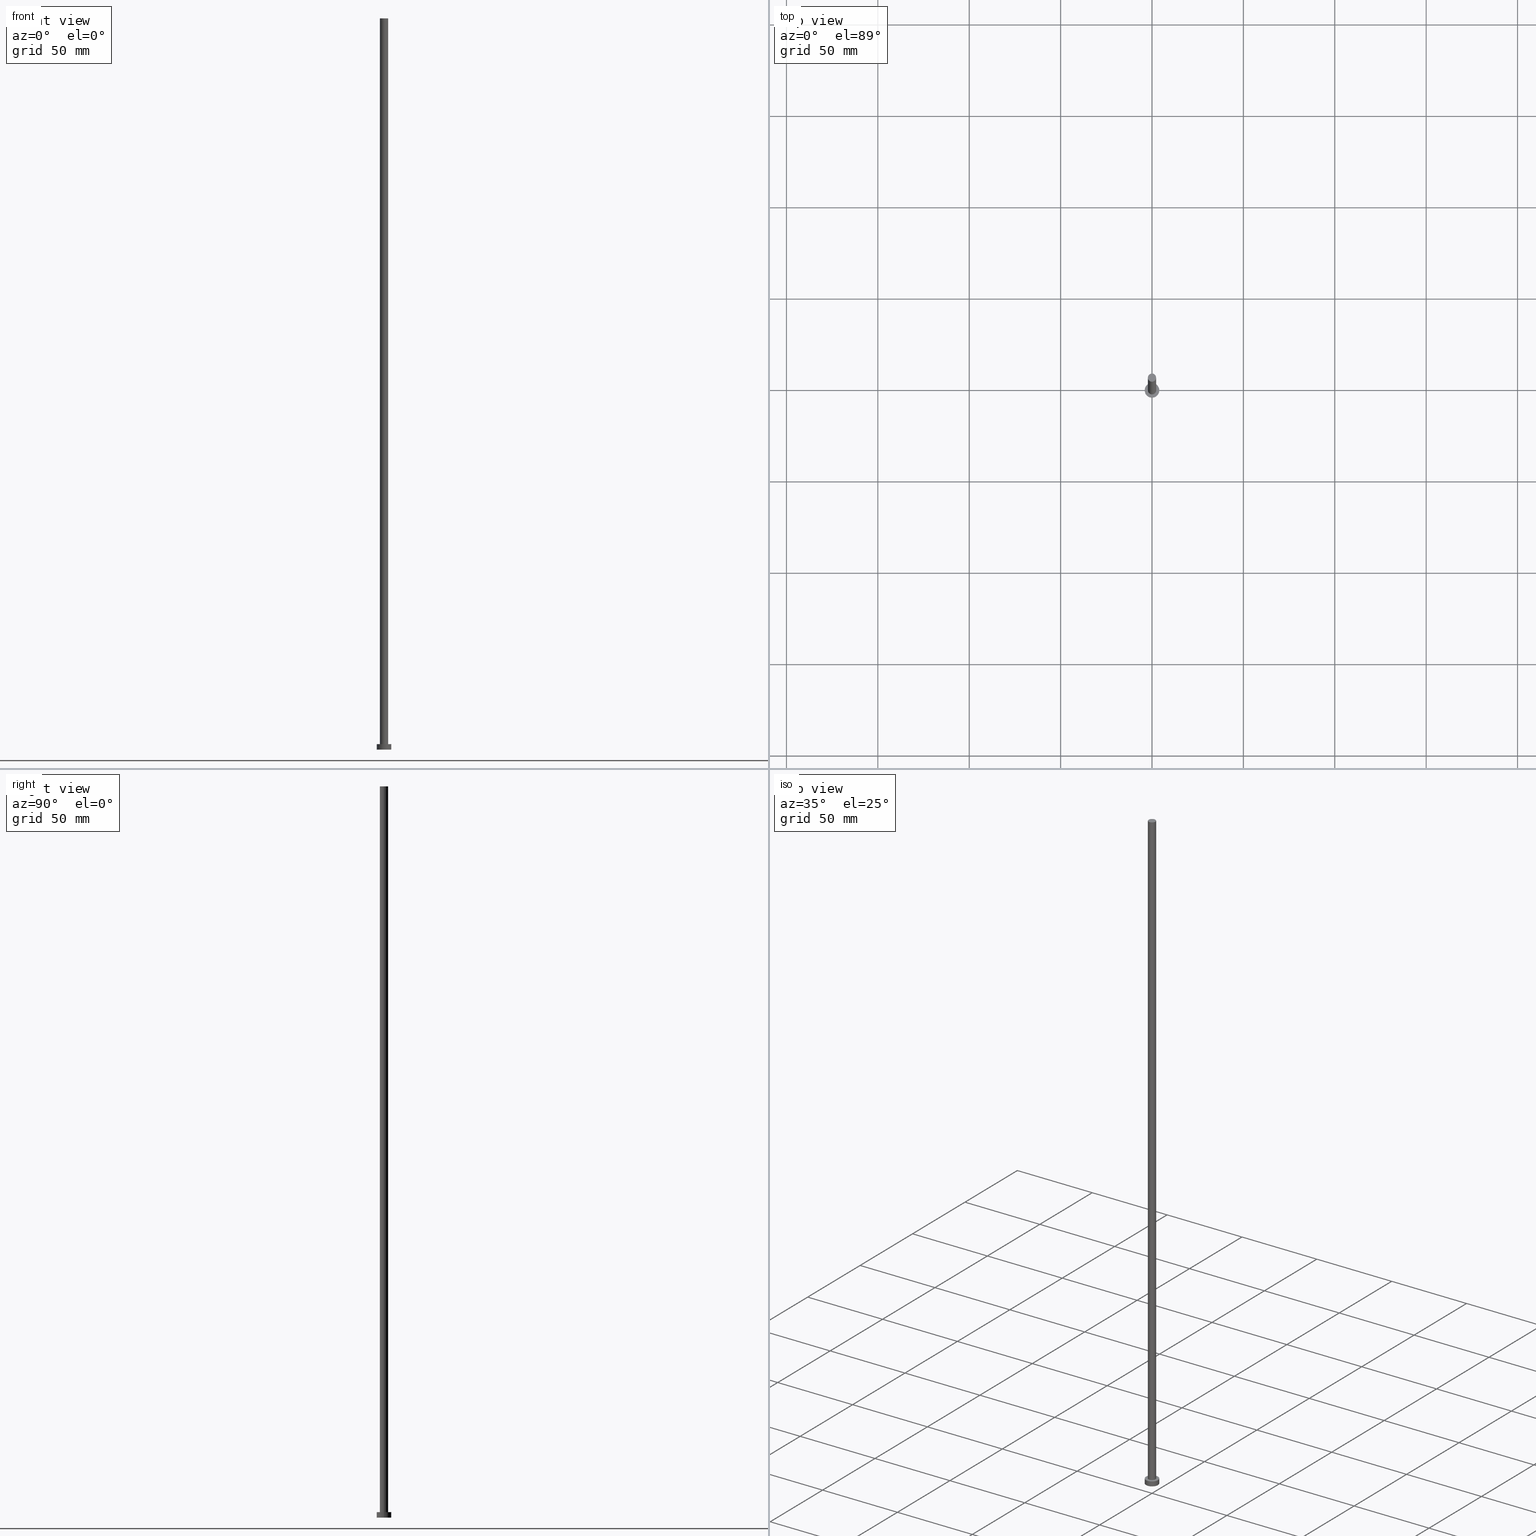
[diagram: canonical four-view strip — front | top / right | iso, engineering-drawing reading convention]
A machine part, canonical four-view strip (front | top / right | iso — engineering-drawing reading convention). The complete STEP part file that produces these views, byte-faithful:
ISO-10303-21;
HEADER;
FILE_DESCRIPTION (( 'STEP AP203' ),
    '1' );
FILE_NAME ('6efa.STEP',
    '2023-02-13T13:27:24',
    ( '' ),
    ( '' ),
    'SwSTEP 2.0',
    'SolidWorks 2019',
    '' );
FILE_SCHEMA (( 'CONFIG_CONTROL_DESIGN' ));
ENDSEC;

DATA;
#1 = PERSON_AND_ORGANIZATION ( #115, #199 ) ;
#2 = PERSON_AND_ORGANIZATION ( #115, #199 ) ;
#3 = DIRECTION ( 'NONE',  ( -1.000000000000000000, 0.000000000000000000, 0.000000000000000000 ) ) ;
#4 = CALENDAR_DATE ( 2023, 13, 2 ) ;
#5 = AXIS2_PLACEMENT_3D ( 'NONE', #218, #200, #213 ) ;
#6 = LOCAL_TIME ( 14, 27, 24.00000000000000000, #105 ) ;
#7 = EDGE_LOOP ( 'NONE', ( #245, #91, #98, #94 ) ) ;
#8 = ADVANCED_FACE ( 'NONE', ( #114 ), #19, .T. ) ;
#9 = ORIENTED_EDGE ( 'NONE', *, *, #11, .F. ) ;
#10 = DIRECTION ( 'NONE',  ( 1.000000000000000000, 0.000000000000000000, 0.000000000000000000 ) ) ;
#11 = EDGE_CURVE ( 'NONE', #42, #186, #147, .T. ) ;
#12 = CARTESIAN_POINT ( 'NONE',  ( -4.000000000000000000, 0.000000000000000000, 3.000000000000000000 ) ) ;
#13 = CARTESIAN_POINT ( 'NONE',  ( 0.000000000000000000, 0.000000000000000000, 3.000000000000000000 ) ) ;
#14 = AXIS2_PLACEMENT_3D ( 'NONE', #125, #153, #10 ) ;
#15 = APPLICATION_PROTOCOL_DEFINITION ( 'international standard', 'config_control_design', 1994, #118 ) ;
#16 = DIRECTION ( 'NONE',  ( 0.000000000000000000, 0.000000000000000000, 1.000000000000000000 ) ) ;
#17 = PERSON_AND_ORGANIZATION_ROLE ( 'creator' ) ;
#18 = EDGE_CURVE ( 'NONE', #42, #57, #49, .T. ) ;
#19 = CYLINDRICAL_SURFACE ( 'NONE', #96, 4.000000000000000000 ) ;
#20 = ORIENTED_EDGE ( 'NONE', *, *, #92, .T. ) ;
#21 = ORIENTED_EDGE ( 'NONE', *, *, #30, .T. ) ;
#22 = VECTOR ( 'NONE', #251, 1000.000000000000000 ) ;
#23 = EDGE_LOOP ( 'NONE', ( #204, #117, #244, #185 ) ) ;
#24 = CARTESIAN_POINT ( 'NONE',  ( 0.000000000000000000, 0.000000000000000000, 400.0000000000000000 ) ) ;
#25 = DIRECTION ( 'NONE',  ( -1.000000000000000000, 0.000000000000000000, 0.000000000000000000 ) ) ;
#26 = APPROVAL_PERSON_ORGANIZATION ( #68, #128, #35 ) ;
#27 = CARTESIAN_POINT ( 'NONE',  ( -2.250000000000000000, 0.000000000000000000, 400.0000000000000000 ) ) ;
#28 = CALENDAR_DATE ( 2023, 13, 2 ) ;
#29 = LINE ( 'NONE', #170, #22 ) ;
#30 = EDGE_CURVE ( 'NONE', #60, #116, #83, .T. ) ;
#31 = SECURITY_CLASSIFICATION_LEVEL ( 'unclassified' ) ;
#32 = SHAPE_DEFINITION_REPRESENTATION ( #121, #172 ) ;
#33 = AXIS2_PLACEMENT_3D ( 'NONE', #13, #124, #210 ) ;
#34 = APPROVAL_STATUS ( 'not_yet_approved' ) ;
#35 = APPROVAL_ROLE ( '' ) ;
#36 = MANIFOLD_SOLID_BREP ( 'P�idat vysunut�m3', #178 ) ;
#37 = AXIS2_PLACEMENT_3D ( 'NONE', #190, #44, #168 ) ;
#38 = CC_DESIGN_PERSON_AND_ORGANIZATION_ASSIGNMENT ( #202, #243, ( #215 ) ) ;
#39 = VERTEX_POINT ( 'NONE', #227 ) ;
#40 = EDGE_LOOP ( 'NONE', ( #141, #162 ) ) ;
#41 = VERTEX_POINT ( 'NONE', #166 ) ;
#42 = VERTEX_POINT ( 'NONE', #252 ) ;
#43 = AXIS2_PLACEMENT_3D ( 'NONE', #64, #149, #211 ) ;
#44 = DIRECTION ( 'NONE',  ( 0.000000000000000000, 0.000000000000000000, 1.000000000000000000 ) ) ;
#45 = PRODUCT_RELATED_PRODUCT_CATEGORY ( 'detail', '', ( #167 ) ) ;
#46 = DIRECTION ( 'NONE',  ( 0.000000000000000000, 0.000000000000000000, 1.000000000000000000 ) ) ;
#47 = DIRECTION ( 'NONE',  ( -0.000000000000000000, -0.000000000000000000, -1.000000000000000000 ) ) ;
#48 = AXIS2_PLACEMENT_3D ( 'NONE', #250, #46, #225 ) ;
#49 = LINE ( 'NONE', #27, #255 ) ;
#50 = DIRECTION ( 'NONE',  ( 0.000000000000000000, 0.000000000000000000, 1.000000000000000000 ) ) ;
#51 =( NAMED_UNIT ( * ) SI_UNIT ( $, .STERADIAN. ) SOLID_ANGLE_UNIT ( ) );
#52 = CARTESIAN_POINT ( 'NONE',  ( -4.000000000000000000, 0.000000000000000000, 3.000000000000000000 ) ) ;
#53 = AXIS2_PLACEMENT_3D ( 'NONE', #145, #50, #191 ) ;
#54 = LOCAL_TIME ( 14, 27, 24.00000000000000000, #150 ) ;
#55 = AXIS2_PLACEMENT_3D ( 'NONE', #228, #226, #76 ) ;
#56 = APPROVAL_DATE_TIME ( #181, #128 ) ;
#57 = VERTEX_POINT ( 'NONE', #61 ) ;
#58 = EDGE_LOOP ( 'NONE', ( #138, #70 ) ) ;
#59 = COORDINATED_UNIVERSAL_TIME_OFFSET ( 1, 0, .AHEAD. ) ;
#60 = VERTEX_POINT ( 'NONE', #12 ) ;
#61 = CARTESIAN_POINT ( 'NONE',  ( -2.250000000000000000, 0.000000000000000000, 3.000000000000000000 ) ) ;
#62 = ADVANCED_FACE ( 'NONE', ( #78 ), #174, .T. ) ;
#63 = FACE_OUTER_BOUND ( 'NONE', #40, .T. ) ;
#64 = CARTESIAN_POINT ( 'NONE',  ( 0.000000000000000000, 0.000000000000000000, 3.000000000000000000 ) ) ;
#65 = DIRECTION ( 'NONE',  ( -1.000000000000000000, 0.000000000000000000, 0.000000000000000000 ) ) ;
#66 = EDGE_CURVE ( 'NONE', #41, #184, #208, .T. ) ;
#67 = COORDINATED_UNIVERSAL_TIME_OFFSET ( 1, 0, .AHEAD. ) ;
#68 = PERSON_AND_ORGANIZATION ( #115, #199 ) ;
#69 = VECTOR ( 'NONE', #136, 1000.000000000000000 ) ;
#70 = ORIENTED_EDGE ( 'NONE', *, *, #154, .F. ) ;
#71 = EDGE_LOOP ( 'NONE', ( #93, #164, #222, #203 ) ) ;
#72 = AXIS2_PLACEMENT_3D ( 'NONE', #249, #47, #25 ) ;
#73 = EDGE_LOOP ( 'NONE', ( #21, #143 ) ) ;
#74 = DIRECTION ( 'NONE',  ( -0.000000000000000000, -0.000000000000000000, -1.000000000000000000 ) ) ;
#75 = UNCERTAINTY_MEASURE_WITH_UNIT (LENGTH_MEASURE( 1.000000000000000082E-05 ), #84, 'distance_accuracy_value', 'NONE');
#76 = DIRECTION ( 'NONE',  ( 1.000000000000000000, 0.000000000000000000, 0.000000000000000000 ) ) ;
#77 = LOCAL_TIME ( 14, 27, 24.00000000000000000, #193 ) ;
#78 = FACE_OUTER_BOUND ( 'NONE', #23, .T. ) ;
#79 = LINE ( 'NONE', #171, #158 ) ;
#80 = PLANE ( 'NONE',  #37 ) ;
#81 = AXIS2_PLACEMENT_3D ( 'NONE', #194, #155, #88 ) ;
#82 = SECURITY_CLASSIFICATION ( '', '', #31 ) ;
#83 = CIRCLE ( 'NONE', #53, 4.000000000000000000 ) ;
#84 =( LENGTH_UNIT ( ) NAMED_UNIT ( * ) SI_UNIT ( .MILLI., .METRE. ) );
#85 = FACE_OUTER_BOUND ( 'NONE', #73, .T. ) ;
#86 = CC_DESIGN_DATE_AND_TIME_ASSIGNMENT ( #232, #196, ( #82 ) ) ;
#87 = APPROVAL_DATE_TIME ( #126, #212 ) ;
#88 = DIRECTION ( 'NONE',  ( 1.000000000000000000, 0.000000000000000000, 0.000000000000000000 ) ) ;
#89 = FACE_OUTER_BOUND ( 'NONE', #220, .T. ) ;
#90 = CARTESIAN_POINT ( 'NONE',  ( 0.000000000000000000, 0.000000000000000000, 3.000000000000000000 ) ) ;
#91 = ORIENTED_EDGE ( 'NONE', *, *, #173, .T. ) ;
#92 = EDGE_CURVE ( 'NONE', #186, #42, #137, .T. ) ;
#93 = ORIENTED_EDGE ( 'NONE', *, *, #173, .F. ) ;
#94 = ORIENTED_EDGE ( 'NONE', *, *, #219, .F. ) ;
#95 = AXIS2_PLACEMENT_3D ( 'NONE', #127, #254, #65 ) ;
#96 = AXIS2_PLACEMENT_3D ( 'NONE', #90, #183, #161 ) ;
#97 = CC_DESIGN_PERSON_AND_ORGANIZATION_ASSIGNMENT ( #179, #236, ( #167 ) ) ;
#98 = ORIENTED_EDGE ( 'NONE', *, *, #66, .T. ) ;
#99 = DIRECTION ( 'NONE',  ( 1.000000000000000000, 0.000000000000000000, 0.000000000000000000 ) ) ;
#100 = CC_DESIGN_APPROVAL ( #128, ( #215 ) ) ;
#101 = DIRECTION ( 'NONE',  ( 0.000000000000000000, 0.000000000000000000, 1.000000000000000000 ) ) ;
#102 = ADVANCED_FACE ( 'NONE', ( #189 ), #80, .T. ) ;
#103 = DATE_AND_TIME ( #28, #54 ) ;
#104 = DIRECTION ( 'NONE',  ( -0.000000000000000000, -0.000000000000000000, -1.000000000000000000 ) ) ;
#105 = COORDINATED_UNIVERSAL_TIME_OFFSET ( 1, 0, .AHEAD. ) ;
#106 = CARTESIAN_POINT ( 'NONE',  ( 2.250000000000000000, 2.755455298081544285E-16, 400.0000000000000000 ) ) ;
#107 = APPROVAL_ROLE ( '' ) ;
#108 = ADVANCED_FACE ( 'NONE', ( #63 ), #123, .F. ) ;
#109 = CALENDAR_DATE ( 2023, 13, 2 ) ;
#110 = CARTESIAN_POINT ( 'NONE',  ( 0.000000000000000000, 0.000000000000000000, 400.0000000000000000 ) ) ;
#111 = APPROVAL_PERSON_ORGANIZATION ( #214, #212, #175 ) ;
#112 = LINE ( 'NONE', #52, #69 ) ;
#113 = CIRCLE ( 'NONE', #43, 4.000000000000000000 ) ;
#114 = FACE_OUTER_BOUND ( 'NONE', #71, .T. ) ;
#115 = PERSON ( 'NEUR�EN�', 'NEUR�EN�', 'NEUR�EN�', ('NEUR�EN�'), ('NEUR�EN�'), ('NEUR�EN�') ) ;
#116 = VERTEX_POINT ( 'NONE', #187 ) ;
#117 = ORIENTED_EDGE ( 'NONE', *, *, #157, .T. ) ;
#118 = APPLICATION_CONTEXT ( 'configuration controlled 3d designs of mechanical parts and assemblies' ) ;
#119 = CC_DESIGN_SECURITY_CLASSIFICATION ( #82, ( #131 ) ) ;
#120 = CIRCLE ( 'NONE', #14, 2.250000000000000000 ) ;
#121 = PRODUCT_DEFINITION_SHAPE ( 'NONE', 'NONE',  #215 ) ;
#122 = CARTESIAN_POINT ( 'NONE',  ( 0.000000000000000000, 0.000000000000000000, 0.000000000000000000 ) ) ;
#123 = PLANE ( 'NONE',  #242 ) ;
#124 = DIRECTION ( 'NONE',  ( 0.000000000000000000, 0.000000000000000000, 1.000000000000000000 ) ) ;
#125 = CARTESIAN_POINT ( 'NONE',  ( 0.000000000000000000, 0.000000000000000000, 3.000000000000000000 ) ) ;
#126 = DATE_AND_TIME ( #235, #163 ) ;
#127 = CARTESIAN_POINT ( 'NONE',  ( 0.000000000000000000, 0.000000000000000000, 3.000000000000000000 ) ) ;
#128 = APPROVAL ( #216, 'NEUR�EN�' ) ;
#129 = DATE_TIME_ROLE ( 'creation_date' ) ;
#130 = CARTESIAN_POINT ( 'NONE',  ( 0.000000000000000000, 0.000000000000000000, 3.000000000000000000 ) ) ;
#131 = PRODUCT_DEFINITION_FORMATION_WITH_SPECIFIED_SOURCE ( 'LIBOVOLN�', '', #167, .NOT_KNOWN. ) ;
#132 = PERSON_AND_ORGANIZATION_ROLE ( 'classification_officer' ) ;
#133 = APPLICATION_PROTOCOL_DEFINITION ( 'international standard', 'config_control_design', 1994, #165 ) ;
#134 = DATE_AND_TIME ( #4, #77 ) ;
#135 = AXIS2_PLACEMENT_3D ( 'NONE', #130, #16, #177 ) ;
#136 = DIRECTION ( 'NONE',  ( -0.000000000000000000, -0.000000000000000000, -1.000000000000000000 ) ) ;
#137 = CIRCLE ( 'NONE', #229, 2.250000000000000000 ) ;
#138 = ORIENTED_EDGE ( 'NONE', *, *, #148, .F. ) ;
#139 = CC_DESIGN_PERSON_AND_ORGANIZATION_ASSIGNMENT ( #2, #132, ( #82 ) ) ;
#140 = DESIGN_CONTEXT ( 'detailed design', #118, 'design' ) ;
#141 = ORIENTED_EDGE ( 'NONE', *, *, #233, .F. ) ;
#142 = APPROVAL ( #237, 'NEUR�EN�' ) ;
#143 = ORIENTED_EDGE ( 'NONE', *, *, #160, .T. ) ;
#144 = ORIENTED_EDGE ( 'NONE', *, *, #11, .T. ) ;
#145 = CARTESIAN_POINT ( 'NONE',  ( 0.000000000000000000, 0.000000000000000000, 3.000000000000000000 ) ) ;
#146 = CIRCLE ( 'NONE', #33, 2.250000000000000000 ) ;
#147 = CIRCLE ( 'NONE', #55, 2.250000000000000000 ) ;
#148 = EDGE_CURVE ( 'NONE', #57, #39, #120, .T. ) ;
#149 = DIRECTION ( 'NONE',  ( 0.000000000000000000, 0.000000000000000000, 1.000000000000000000 ) ) ;
#150 = COORDINATED_UNIVERSAL_TIME_OFFSET ( 1, 0, .AHEAD. ) ;
#151 = DIRECTION ( 'NONE',  ( 0.000000000000000000, 0.000000000000000000, 1.000000000000000000 ) ) ;
#152 = APPROVAL_DATE_TIME ( #134, #142 ) ;
#153 = DIRECTION ( 'NONE',  ( 0.000000000000000000, 0.000000000000000000, 1.000000000000000000 ) ) ;
#154 = EDGE_CURVE ( 'NONE', #39, #57, #146, .T. ) ;
#155 = DIRECTION ( 'NONE',  ( 0.000000000000000000, 0.000000000000000000, 1.000000000000000000 ) ) ;
#156 = CARTESIAN_POINT ( 'NONE',  ( -4.000000000000000000, 0.000000000000000000, 0.000000000000000000 ) ) ;
#157 = EDGE_CURVE ( 'NONE', #186, #39, #29, .T. ) ;
#158 = VECTOR ( 'NONE', #104, 1000.000000000000000 ) ;
#159 = LOCAL_TIME ( 14, 27, 24.00000000000000000, #59 ) ;
#160 = EDGE_CURVE ( 'NONE', #116, #60, #113, .T. ) ;
#161 = DIRECTION ( 'NONE',  ( -1.000000000000000000, 0.000000000000000000, 0.000000000000000000 ) ) ;
#162 = ORIENTED_EDGE ( 'NONE', *, *, #66, .F. ) ;
#163 = LOCAL_TIME ( 14, 27, 24.00000000000000000, #67 ) ;
#164 = ORIENTED_EDGE ( 'NONE', *, *, #30, .F. ) ;
#165 = APPLICATION_CONTEXT ( 'configuration controlled 3d designs of mechanical parts and assemblies' ) ;
#166 = CARTESIAN_POINT ( 'NONE',  ( 4.000000000000000000, 4.898587196589412829E-16, 0.000000000000000000 ) ) ;
#167 = PRODUCT ( '6efa', '6efa', '', ( #195 ) ) ;
#168 = DIRECTION ( 'NONE',  ( 1.000000000000000000, 0.000000000000000000, -0.000000000000000000 ) ) ;
#169 = CC_DESIGN_APPROVAL ( #142, ( #82 ) ) ;
#170 = CARTESIAN_POINT ( 'NONE',  ( 2.250000000000000000, 2.755455298081544285E-16, 400.0000000000000000 ) ) ;
#171 = CARTESIAN_POINT ( 'NONE',  ( 4.000000000000000000, 4.898587196589412829E-16, 3.000000000000000000 ) ) ;
#172 = ADVANCED_BREP_SHAPE_REPRESENTATION ( '6efa', ( #36, #5 ), #240 ) ;
#173 = EDGE_CURVE ( 'NONE', #116, #41, #79, .T. ) ;
#174 = CYLINDRICAL_SURFACE ( 'NONE', #72, 2.250000000000000000 ) ;
#175 = APPROVAL_ROLE ( '' ) ;
#176 = PLANE ( 'NONE',  #135 ) ;
#177 = DIRECTION ( 'NONE',  ( 1.000000000000000000, 0.000000000000000000, -0.000000000000000000 ) ) ;
#178 = CLOSED_SHELL ( 'NONE', ( #62, #180, #8, #247, #108, #205, #102 ) ) ;
#179 = PERSON_AND_ORGANIZATION ( #115, #199 ) ;
#180 = ADVANCED_FACE ( 'NONE', ( #231 ), #192, .T. ) ;
#181 = DATE_AND_TIME ( #201, #159 ) ;
#182 = AXIS2_PLACEMENT_3D ( 'NONE', #110, #197, #3 ) ;
#183 = DIRECTION ( 'NONE',  ( -0.000000000000000000, -0.000000000000000000, -1.000000000000000000 ) ) ;
#184 = VERTEX_POINT ( 'NONE', #156 ) ;
#185 = ORIENTED_EDGE ( 'NONE', *, *, #18, .F. ) ;
#186 = VERTEX_POINT ( 'NONE', #106 ) ;
#187 = CARTESIAN_POINT ( 'NONE',  ( 4.000000000000000000, 4.898587196589412829E-16, 3.000000000000000000 ) ) ;
#188 = CC_DESIGN_PERSON_AND_ORGANIZATION_ASSIGNMENT ( #1, #17, ( #131 ) ) ;
#189 = FACE_OUTER_BOUND ( 'NONE', #248, .T. ) ;
#190 = CARTESIAN_POINT ( 'NONE',  ( 0.000000000000000000, 0.000000000000000000, 400.0000000000000000 ) ) ;
#191 = DIRECTION ( 'NONE',  ( 1.000000000000000000, 0.000000000000000000, 0.000000000000000000 ) ) ;
#192 = CYLINDRICAL_SURFACE ( 'NONE', #95, 4.000000000000000000 ) ;
#193 = COORDINATED_UNIVERSAL_TIME_OFFSET ( 1, 0, .AHEAD. ) ;
#194 = CARTESIAN_POINT ( 'NONE',  ( 0.000000000000000000, 0.000000000000000000, 0.000000000000000000 ) ) ;
#195 = MECHANICAL_CONTEXT ( 'NONE', #165, 'mechanical' ) ;
#196 = DATE_TIME_ROLE ( 'classification_date' ) ;
#197 = DIRECTION ( 'NONE',  ( -0.000000000000000000, -0.000000000000000000, -1.000000000000000000 ) ) ;
#198 = PERSON_AND_ORGANIZATION_ROLE ( 'design_supplier' ) ;
#199 = ORGANIZATION ( 'NEUR�EN�', 'NEUR�EN�', '' ) ;
#200 = DIRECTION ( 'NONE',  ( 0.000000000000000000, 0.000000000000000000, 1.000000000000000000 ) ) ;
#201 = CALENDAR_DATE ( 2023, 13, 2 ) ;
#202 = PERSON_AND_ORGANIZATION ( #115, #199 ) ;
#203 = ORIENTED_EDGE ( 'NONE', *, *, #233, .T. ) ;
#204 = ORIENTED_EDGE ( 'NONE', *, *, #92, .F. ) ;
#205 = ADVANCED_FACE ( 'NONE', ( #89 ), #239, .T. ) ;
#206 = CC_DESIGN_APPROVAL ( #212, ( #131 ) ) ;
#207 = ORIENTED_EDGE ( 'NONE', *, *, #18, .T. ) ;
#208 = CIRCLE ( 'NONE', #48, 4.000000000000000000 ) ;
#209 = DIRECTION ( 'NONE',  ( 1.000000000000000000, 0.000000000000000000, -0.000000000000000000 ) ) ;
#210 = DIRECTION ( 'NONE',  ( 1.000000000000000000, 0.000000000000000000, 0.000000000000000000 ) ) ;
#211 = DIRECTION ( 'NONE',  ( 1.000000000000000000, 0.000000000000000000, 0.000000000000000000 ) ) ;
#212 = APPROVAL ( #34, 'NEUR�EN�' ) ;
#213 = DIRECTION ( 'NONE',  ( 1.000000000000000000, 0.000000000000000000, 0.000000000000000000 ) ) ;
#214 = PERSON_AND_ORGANIZATION ( #115, #199 ) ;
#215 = PRODUCT_DEFINITION ( 'NEZN�M�', '', #131, #140 ) ;
#216 = APPROVAL_STATUS ( 'not_yet_approved' ) ;
#217 = PERSON_AND_ORGANIZATION ( #115, #199 ) ;
#218 = CARTESIAN_POINT ( 'NONE',  ( 0.000000000000000000, 0.000000000000000000, 0.000000000000000000 ) ) ;
#219 = EDGE_CURVE ( 'NONE', #60, #184, #112, .T. ) ;
#220 = EDGE_LOOP ( 'NONE', ( #246, #9, #207, #223 ) ) ;
#221 = CC_DESIGN_PERSON_AND_ORGANIZATION_ASSIGNMENT ( #217, #198, ( #131 ) ) ;
#222 = ORIENTED_EDGE ( 'NONE', *, *, #219, .T. ) ;
#223 = ORIENTED_EDGE ( 'NONE', *, *, #148, .T. ) ;
#224 = CC_DESIGN_DATE_AND_TIME_ASSIGNMENT ( #103, #129, ( #215 ) ) ;
#225 = DIRECTION ( 'NONE',  ( 1.000000000000000000, 0.000000000000000000, 0.000000000000000000 ) ) ;
#226 = DIRECTION ( 'NONE',  ( 0.000000000000000000, 0.000000000000000000, 1.000000000000000000 ) ) ;
#227 = CARTESIAN_POINT ( 'NONE',  ( 2.250000000000000000, 2.755455298081544285E-16, 3.000000000000000000 ) ) ;
#228 = CARTESIAN_POINT ( 'NONE',  ( 0.000000000000000000, 0.000000000000000000, 400.0000000000000000 ) ) ;
#229 = AXIS2_PLACEMENT_3D ( 'NONE', #24, #151, #99 ) ;
#230 = PERSON_AND_ORGANIZATION ( #115, #199 ) ;
#231 = FACE_OUTER_BOUND ( 'NONE', #7, .T. ) ;
#232 = DATE_AND_TIME ( #109, #6 ) ;
#233 = EDGE_CURVE ( 'NONE', #184, #41, #253, .T. ) ;
#234 =( NAMED_UNIT ( * ) PLANE_ANGLE_UNIT ( ) SI_UNIT ( $, .RADIAN. ) );
#235 = CALENDAR_DATE ( 2023, 13, 2 ) ;
#236 = PERSON_AND_ORGANIZATION_ROLE ( 'design_owner' ) ;
#237 = APPROVAL_STATUS ( 'not_yet_approved' ) ;
#238 = FACE_BOUND ( 'NONE', #58, .T. ) ;
#239 = CYLINDRICAL_SURFACE ( 'NONE', #182, 2.250000000000000000 ) ;
#240 =( GEOMETRIC_REPRESENTATION_CONTEXT ( 3 ) GLOBAL_UNCERTAINTY_ASSIGNED_CONTEXT ( ( #75 ) ) GLOBAL_UNIT_ASSIGNED_CONTEXT ( ( #84, #234, #51 ) ) REPRESENTATION_CONTEXT ( 'NONE', 'WORKASPACE' ) );
#241 = APPROVAL_PERSON_ORGANIZATION ( #230, #142, #107 ) ;
#242 = AXIS2_PLACEMENT_3D ( 'NONE', #122, #101, #209 ) ;
#243 = PERSON_AND_ORGANIZATION_ROLE ( 'creator' ) ;
#244 = ORIENTED_EDGE ( 'NONE', *, *, #154, .T. ) ;
#245 = ORIENTED_EDGE ( 'NONE', *, *, #160, .F. ) ;
#246 = ORIENTED_EDGE ( 'NONE', *, *, #157, .F. ) ;
#247 = ADVANCED_FACE ( 'NONE', ( #238, #85 ), #176, .T. ) ;
#248 = EDGE_LOOP ( 'NONE', ( #144, #20 ) ) ;
#249 = CARTESIAN_POINT ( 'NONE',  ( 0.000000000000000000, 0.000000000000000000, 400.0000000000000000 ) ) ;
#250 = CARTESIAN_POINT ( 'NONE',  ( 0.000000000000000000, 0.000000000000000000, 0.000000000000000000 ) ) ;
#251 = DIRECTION ( 'NONE',  ( -0.000000000000000000, -0.000000000000000000, -1.000000000000000000 ) ) ;
#252 = CARTESIAN_POINT ( 'NONE',  ( -2.250000000000000000, 0.000000000000000000, 400.0000000000000000 ) ) ;
#253 = CIRCLE ( 'NONE', #81, 4.000000000000000000 ) ;
#254 = DIRECTION ( 'NONE',  ( -0.000000000000000000, -0.000000000000000000, -1.000000000000000000 ) ) ;
#255 = VECTOR ( 'NONE', #74, 1000.000000000000000 ) ;
ENDSEC;
END-ISO-10303-21;
